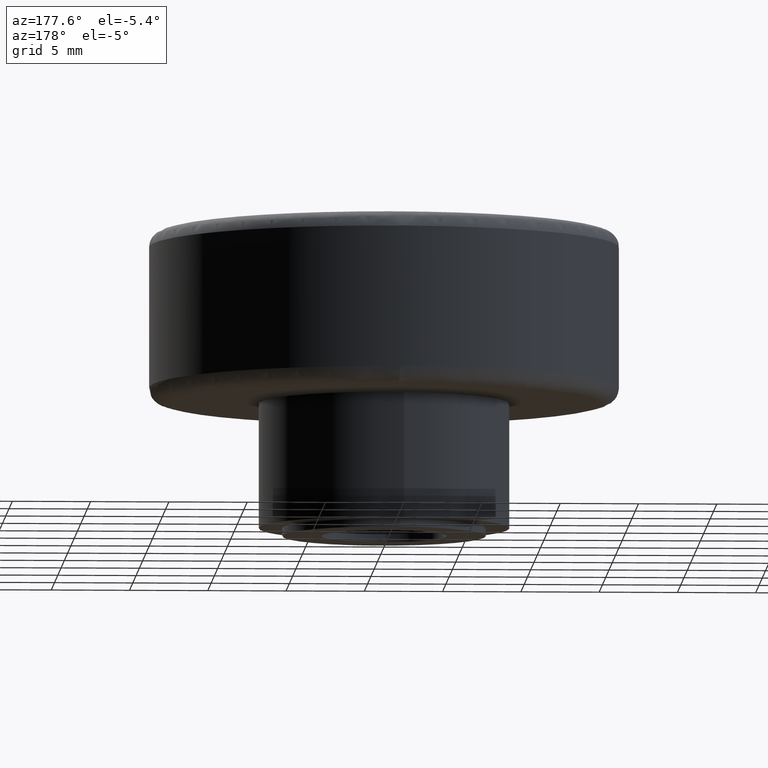
[diagram: clean part render]
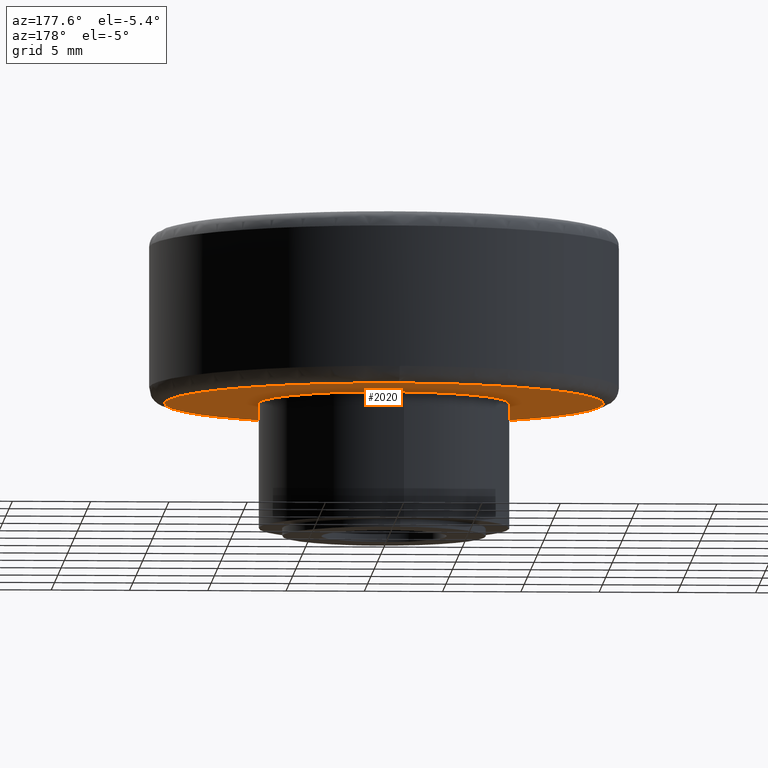
[diagram: same view with one face highlighted and labeled with its STEP entity id]
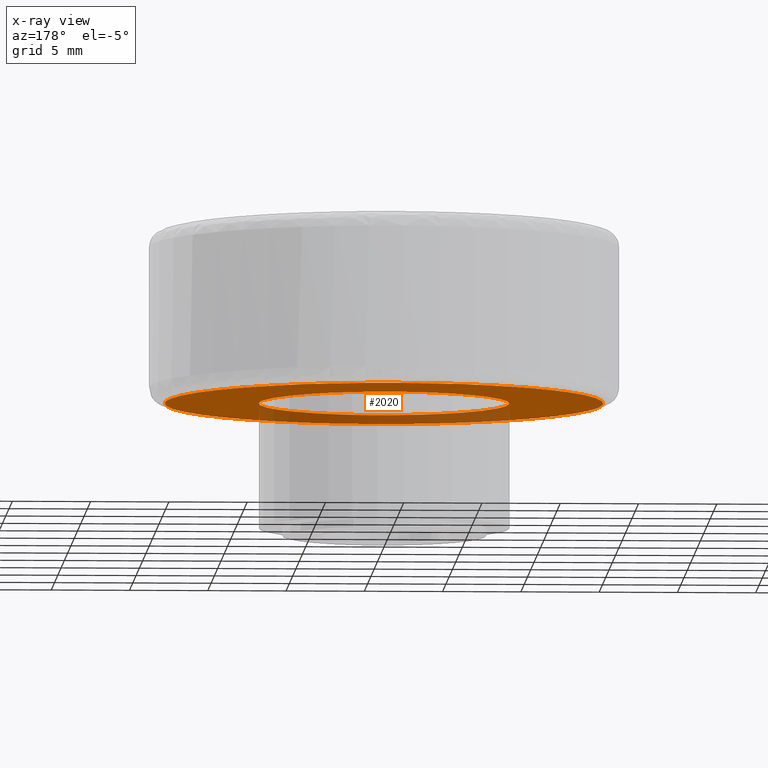
[diagram: x-ray of the same camera — body ghosted, the highlighted face saturated]
A machine part, auxiliary view. The second image highlights one B-rep face of the part: STEP entity #2020.
The next image is the same camera in x-ray: the body ghosted, the highlighted face saturated — about 26% of this face is hidden behind the body in this view.
In plain terms, the highlighted face is a freeform B-spline surface patch.
Its self-contained STEP definition (entity closure, byte-faithful):
#1270=CARTESIAN_POINT('',(-0.944261927935937,7.944077631248695,8.500000000000000));
#1271=VERTEX_POINT('',#1270);
#1277=CARTESIAN_POINT('',(8.0,0.0,8.500000000000000));
#1278=VERTEX_POINT('',#1277);
#1279=CARTESIAN_POINT('',(-0.944261927935937,7.944077631248695,8.500000000000000));
#1280=CARTESIAN_POINT('',(-0.473786919394231,8.0,8.500000000000000));
#1281=CARTESIAN_POINT('',(0.0,8.0,8.500000000000000));
#1282=CARTESIAN_POINT('',(8.0,8.0,8.500000000000002));
#1283=CARTESIAN_POINT('',(8.0,0.0,8.500000000000000));
#1291=(BOUNDED_CURVE()B_SPLINE_CURVE(2,(#1279,#1280,#1281,#1282,#1283),.UNSPECIFIED.,.F.,.U.)B_SPLINE_CURVE_WITH_KNOTS((3,2,3),(0.229562727726922,0.250000000000000,0.500000000000000),.UNSPECIFIED.)CURVE()GEOMETRIC_REPRESENTATION_ITEM()RATIONAL_B_SPLINE_CURVE((0.956027252453000,0.976056246160685,1.0,0.707106781186548,1.0))REPRESENTATION_ITEM(''));
#1292=EDGE_CURVE('',#1271,#1278,#1291,.T.);
#1294=CARTESIAN_POINT('',(0.488375731822761,-7.985079157053336,8.500000000000000));
#1295=VERTEX_POINT('',#1294);
#1296=CARTESIAN_POINT('',(8.0,0.0,8.500000000000000));
#1297=CARTESIAN_POINT('',(8.0,-7.525660417812819,8.500000000000000));
#1298=CARTESIAN_POINT('',(0.488375731822761,-7.985079157053336,8.500000000000000));
#1306=(BOUNDED_CURVE()B_SPLINE_CURVE(2,(#1296,#1297,#1298),.UNSPECIFIED.,.F.,.U.)B_SPLINE_CURVE_WITH_KNOTS((3,3),(0.500000000000000,0.739333234175171),.UNSPECIFIED.)CURVE()GEOMETRIC_REPRESENTATION_ITEM()RATIONAL_B_SPLINE_CURVE((1.0,0.719603674693601,0.976072624478513))REPRESENTATION_ITEM(''));
#1307=EDGE_CURVE('',#1278,#1295,#1306,.T.);
#1385=CARTESIAN_POINT('',(-8.0,0.0,8.500000000000000));
#1386=VERTEX_POINT('',#1385);
#1387=CARTESIAN_POINT('',(0.488375731822761,-7.985079157053336,8.500000000000000));
#1388=CARTESIAN_POINT('',(0.244415796518627,-8.0,8.499999999999998));
#1389=CARTESIAN_POINT('',(0.0,-8.0,8.500000000000000));
#1390=CARTESIAN_POINT('',(-8.0,-8.0,8.500000000000002));
#1391=CARTESIAN_POINT('',(-8.0,0.0,8.500000000000000));
#1399=(BOUNDED_CURVE()B_SPLINE_CURVE(2,(#1387,#1388,#1389,#1390,#1391),.UNSPECIFIED.,.F.,.U.)B_SPLINE_CURVE_WITH_KNOTS((3,2,3),(0.739333234175171,0.750000000000000,1.0),.UNSPECIFIED.)CURVE()GEOMETRIC_REPRESENTATION_ITEM()RATIONAL_B_SPLINE_CURVE((0.976072624478513,0.987503106492946,1.0,0.707106781186548,1.0))REPRESENTATION_ITEM(''));
#1400=EDGE_CURVE('',#1295,#1386,#1399,.T.);
#1402=CARTESIAN_POINT('',(-8.0,0.0,8.500000000000000));
#1403=CARTESIAN_POINT('',(-8.0,7.105406970647592,8.500000000000000));
#1404=CARTESIAN_POINT('',(-0.944261927935937,7.944077631248695,8.500000000000000));
#1412=(BOUNDED_CURVE()B_SPLINE_CURVE(2,(#1402,#1403,#1404),.UNSPECIFIED.,.F.,.U.)B_SPLINE_CURVE_WITH_KNOTS((3,3),(0.0,0.229562727726922),.UNSPECIFIED.)CURVE()GEOMETRIC_REPRESENTATION_ITEM()RATIONAL_B_SPLINE_CURVE((1.0,0.731050535025862,0.956027252453000))REPRESENTATION_ITEM(''));
#1413=EDGE_CURVE('',#1386,#1271,#1412,.T.);
#1690=CARTESIAN_POINT('',(-0.351821336244475,13.995578650466770,8.500000000000000));
#1691=VERTEX_POINT('',#1690);
#1692=CARTESIAN_POINT('',(14.0,0.0,8.500000000000000));
#1693=VERTEX_POINT('',#1692);
#1694=CARTESIAN_POINT('',(-0.351821336244475,13.995578650466772,8.500000000000000));
#1695=CARTESIAN_POINT('',(-0.175938449752476,13.999999999999998,8.500000000000000));
#1696=CARTESIAN_POINT('',(0.0,14.0,8.500000000000000));
#1697=CARTESIAN_POINT('',(13.999999999999998,13.999999999999998,8.500000000000000));
#1698=CARTESIAN_POINT('',(14.0,0.0,8.500000000000000));
#1706=(BOUNDED_CURVE()B_SPLINE_CURVE(2,(#1694,#1695,#1696,#1697,#1698),.UNSPECIFIED.,.F.,.U.)B_SPLINE_CURVE_WITH_KNOTS((3,2,3),(0.245579891769179,0.250000000000000,0.500000000000000),.UNSPECIFIED.)CURVE()GEOMETRIC_REPRESENTATION_ITEM()RATIONAL_B_SPLINE_CURVE((0.989826157680155,0.994821521091084,1.0,0.707106781186547,1.0))REPRESENTATION_ITEM(''));
#1707=EDGE_CURVE('',#1691,#1693,#1706,.T.);
#1725=CARTESIAN_POINT('',(-13.995578650399141,-0.351821336239177,8.500000000000000));
#1726=VERTEX_POINT('',#1725);
#1740=CARTESIAN_POINT('',(14.0,0.0,8.500000000000000));
#1741=CARTESIAN_POINT('',(13.999999999999998,-13.999999999999998,8.500000000000000));
#1742=CARTESIAN_POINT('',(0.0,-14.0,8.500000000000000));
#1743=CARTESIAN_POINT('',(-13.652490266487042,-13.999999999999998,8.500000000000000));
#1744=CARTESIAN_POINT('',(-13.995578650399141,-0.351821336239177,8.500000000000000));
#1752=(BOUNDED_CURVE()B_SPLINE_CURVE(2,(#1740,#1741,#1742,#1743,#1744),.UNSPECIFIED.,.F.,.U.)B_SPLINE_CURVE_WITH_KNOTS((3,2,3),(0.500000000000000,0.750000000000000,0.995579891769269),.UNSPECIFIED.)CURVE()GEOMETRIC_REPRESENTATION_ITEM()RATIONAL_B_SPLINE_CURVE((1.0,0.707106781186547,1.0,0.712285260095358,0.989826157680359))REPRESENTATION_ITEM(''));
#1753=EDGE_CURVE('',#1693,#1726,#1752,.T.);
#1775=CARTESIAN_POINT('',(-14.0,0.0,8.500000000000000));
#1776=VERTEX_POINT('',#1775);
#1777=CARTESIAN_POINT('',(-14.0,0.0,8.500000000000000));
#1778=CARTESIAN_POINT('',(-14.0,13.652490266480006,8.500000000000000));
#1779=CARTESIAN_POINT('',(-0.351821336244475,13.995578650466770,8.500000000000000));
#1787=(BOUNDED_CURVE()B_SPLINE_CURVE(2,(#1777,#1778,#1779),.UNSPECIFIED.,.F.,.U.)B_SPLINE_CURVE_WITH_KNOTS((3,3),(0.0,0.245579891769179),.UNSPECIFIED.)CURVE()GEOMETRIC_REPRESENTATION_ITEM()RATIONAL_B_SPLINE_CURVE((1.0,0.712285260095464,0.989826157680155))REPRESENTATION_ITEM(''));
#1788=EDGE_CURVE('',#1776,#1691,#1787,.T.);
#1790=CARTESIAN_POINT('',(-13.995578650399141,-0.351821336239177,8.500000000000000));
#1791=CARTESIAN_POINT('',(-14.000000000000005,-0.175938449748880,8.500000000000000));
#1792=CARTESIAN_POINT('',(-14.0,0.0,8.500000000000000));
#1800=(BOUNDED_CURVE()B_SPLINE_CURVE(2,(#1790,#1791,#1792),.UNSPECIFIED.,.F.,.U.)B_SPLINE_CURVE_WITH_KNOTS((3,3),(0.995579891769269,1.0),.UNSPECIFIED.)CURVE()GEOMETRIC_REPRESENTATION_ITEM()RATIONAL_B_SPLINE_CURVE((0.989826157680358,0.994821521091189,1.0))REPRESENTATION_ITEM(''));
#1801=EDGE_CURVE('',#1726,#1776,#1800,.T.);
#2003=CARTESIAN_POINT('',(-15.398599945730570,-15.397218603200690,8.500000000000000));
#2004=CARTESIAN_POINT('',(15.398600696749090,-15.397218603200690,8.500000000000000));
#2005=CARTESIAN_POINT('',(-15.398599945730570,15.393903291581330,8.500000000000000));
#2006=CARTESIAN_POINT('',(15.398600696749090,15.393903291581330,8.500000000000000));
#2007=B_SPLINE_SURFACE_WITH_KNOTS('',1,1,((#2003,#2005),(#2004,#2006)),.UNSPECIFIED.,.F.,.F.,.U.,(2,2),(2,2),(0.0,30.797200642479659),(0.0,30.791121894782020),.UNSPECIFIED.);
#2008=ORIENTED_EDGE('',*,*,#1788,.T.);
#2009=ORIENTED_EDGE('',*,*,#1707,.T.);
#2010=ORIENTED_EDGE('',*,*,#1753,.T.);
#2011=ORIENTED_EDGE('',*,*,#1801,.T.);
#2012=EDGE_LOOP('',(#2008,#2009,#2010,#2011));
#2013=FACE_OUTER_BOUND('',#2012,.T.);
#2014=ORIENTED_EDGE('',*,*,#1307,.F.);
#2015=ORIENTED_EDGE('',*,*,#1292,.F.);
#2016=ORIENTED_EDGE('',*,*,#1413,.F.);
#2017=ORIENTED_EDGE('',*,*,#1400,.F.);
#2018=EDGE_LOOP('',(#2014,#2015,#2016,#2017));
#2019=FACE_BOUND('',#2018,.T.);
#2020=ADVANCED_FACE('',(#2013,#2019),#2007,.F.);